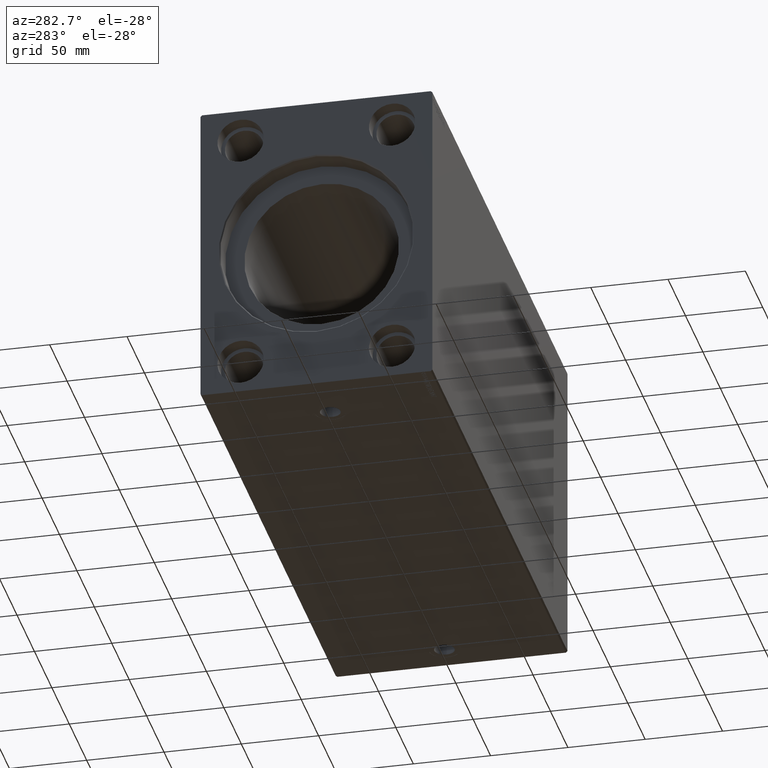
[diagram: clean part render]
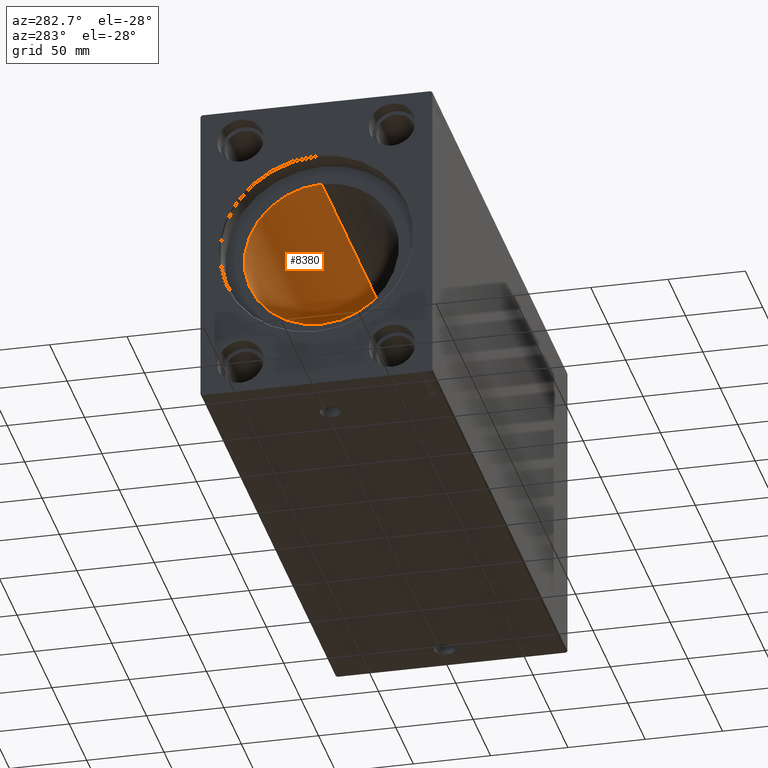
[diagram: same view with one face highlighted and labeled with its STEP entity id]
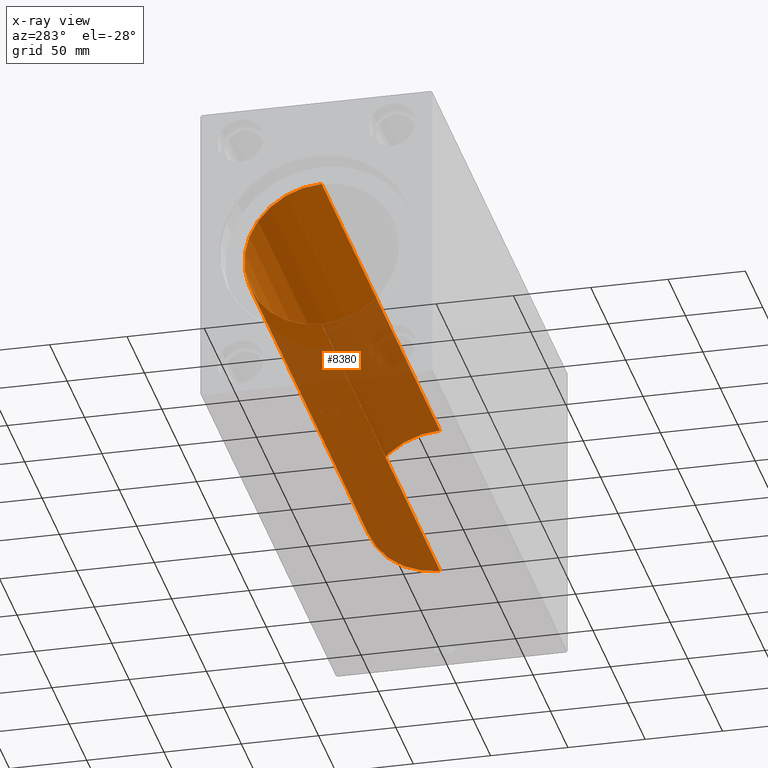
[diagram: x-ray of the same camera — body ghosted, the highlighted face saturated]
A machine part, auxiliary view. The second image highlights one B-rep face of the part: STEP entity #8380.
The next image is the same camera in x-ray: the body ghosted, the highlighted face saturated — about 60% of this face is hidden behind the body in this view.
In plain terms, the highlighted cylindrical surface (partial cylindrical patch) has radius 50 mm, axis along (-1, -0, -0).
Its self-contained STEP definition (entity closure, byte-faithful):
#1123 = CIRCLE ( 'NONE', #22411, 50.00000000000000000 ) ;
#1150 = CARTESIAN_POINT ( 'NONE',  ( 354.6999999999999886, 6.123233995736766085E-15, -50.00000000000000000 ) ) ;
#1151 = AXIS2_PLACEMENT_3D ( 'NONE', #25172, #21946, #35066 ) ;
#1240 = ORIENTED_EDGE ( 'NONE', *, *, #16626, .F. ) ;
#4913 = VERTEX_POINT ( 'NONE', #26476 ) ;
#5814 = FACE_OUTER_BOUND ( 'NONE', #16991, .T. ) ;
#6025 = DIRECTION ( 'NONE',  ( 0.000000000000000000, 0.000000000000000000, 1.000000000000000000 ) ) ;
#6164 = ORIENTED_EDGE ( 'NONE', *, *, #18232, .T. ) ;
#8233 = EDGE_CURVE ( 'NONE', #4913, #26508, #15695, .T. ) ;
#8380 = ADVANCED_FACE ( 'NONE', ( #5814 ), #18481, .F. ) ;
#8748 = DIRECTION ( 'NONE',  ( 0.000000000000000000, 0.000000000000000000, 1.000000000000000000 ) ) ;
#9453 = DIRECTION ( 'NONE',  ( -1.000000000000000000, -0.000000000000000000, -0.000000000000000000 ) ) ;
#10433 = VERTEX_POINT ( 'NONE', #32216 ) ;
#12037 = CARTESIAN_POINT ( 'NONE',  ( 354.6999999999999886, 0.000000000000000000, 50.00000000000000000 ) ) ;
#12465 = CARTESIAN_POINT ( 'NONE',  ( 354.6999999999999886, 0.000000000000000000, 0.000000000000000000 ) ) ;
#13492 = CIRCLE ( 'NONE', #1151, 50.00000000000000000 ) ;
#14548 = DIRECTION ( 'NONE',  ( -1.000000000000000000, 0.000000000000000000, 0.000000000000000000 ) ) ;
#15068 = VECTOR ( 'NONE', #21523, 1000.000000000000000 ) ;
#15695 = LINE ( 'NONE', #12037, #35372 ) ;
#16511 = VERTEX_POINT ( 'NONE', #39706 ) ;
#16626 = EDGE_CURVE ( 'NONE', #4913, #10433, #1123, .T. ) ;
#16991 = EDGE_LOOP ( 'NONE', ( #40041, #1240, #27052, #6164 ) ) ;
#18232 = EDGE_CURVE ( 'NONE', #26508, #16511, #13492, .T. ) ;
#18481 = CYLINDRICAL_SURFACE ( 'NONE', #25761, 50.00000000000000000 ) ;
#21523 = DIRECTION ( 'NONE',  ( -1.000000000000000000, -0.000000000000000000, -0.000000000000000000 ) ) ;
#21758 = CARTESIAN_POINT ( 'NONE',  ( 15.00000000000001421, 0.000000000000000000, 50.00000000000000000 ) ) ;
#21946 = DIRECTION ( 'NONE',  ( -1.000000000000000000, 0.000000000000000000, 0.000000000000000000 ) ) ;
#22411 = AXIS2_PLACEMENT_3D ( 'NONE', #31093, #14548, #8748 ) ;
#25172 = CARTESIAN_POINT ( 'NONE',  ( 15.00000000000001421, 0.000000000000000000, 0.000000000000000000 ) ) ;
#25761 = AXIS2_PLACEMENT_3D ( 'NONE', #12465, #9453, #6025 ) ;
#26476 = CARTESIAN_POINT ( 'NONE',  ( 354.6999999999999886, 0.000000000000000000, 50.00000000000000000 ) ) ;
#26508 = VERTEX_POINT ( 'NONE', #21758 ) ;
#26710 = LINE ( 'NONE', #1150, #15068 ) ;
#27052 = ORIENTED_EDGE ( 'NONE', *, *, #8233, .T. ) ;
#30347 = EDGE_CURVE ( 'NONE', #10433, #16511, #26710, .T. ) ;
#31093 = CARTESIAN_POINT ( 'NONE',  ( 354.6999999999999886, 0.000000000000000000, 0.000000000000000000 ) ) ;
#32216 = CARTESIAN_POINT ( 'NONE',  ( 354.6999999999999886, 6.123233995736766085E-15, -50.00000000000000000 ) ) ;
#35066 = DIRECTION ( 'NONE',  ( 0.000000000000000000, 0.000000000000000000, 1.000000000000000000 ) ) ;
#35372 = VECTOR ( 'NONE', #41479, 1000.000000000000000 ) ;
#39706 = CARTESIAN_POINT ( 'NONE',  ( 15.00000000000001421, 6.123233995736766085E-15, -50.00000000000000000 ) ) ;
#40041 = ORIENTED_EDGE ( 'NONE', *, *, #30347, .F. ) ;
#41479 = DIRECTION ( 'NONE',  ( -1.000000000000000000, -0.000000000000000000, -0.000000000000000000 ) ) ;